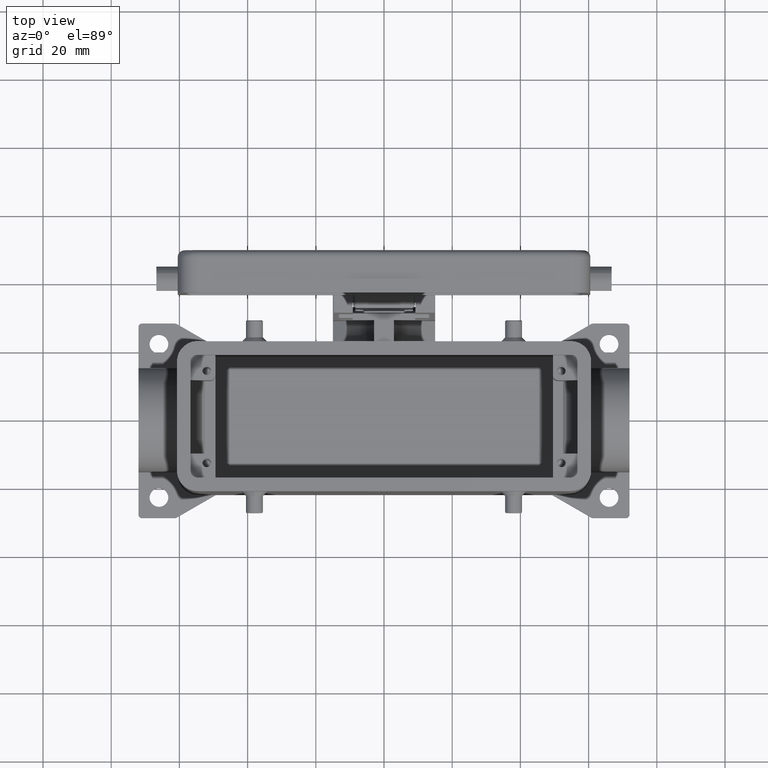
[diagram: clean part render]
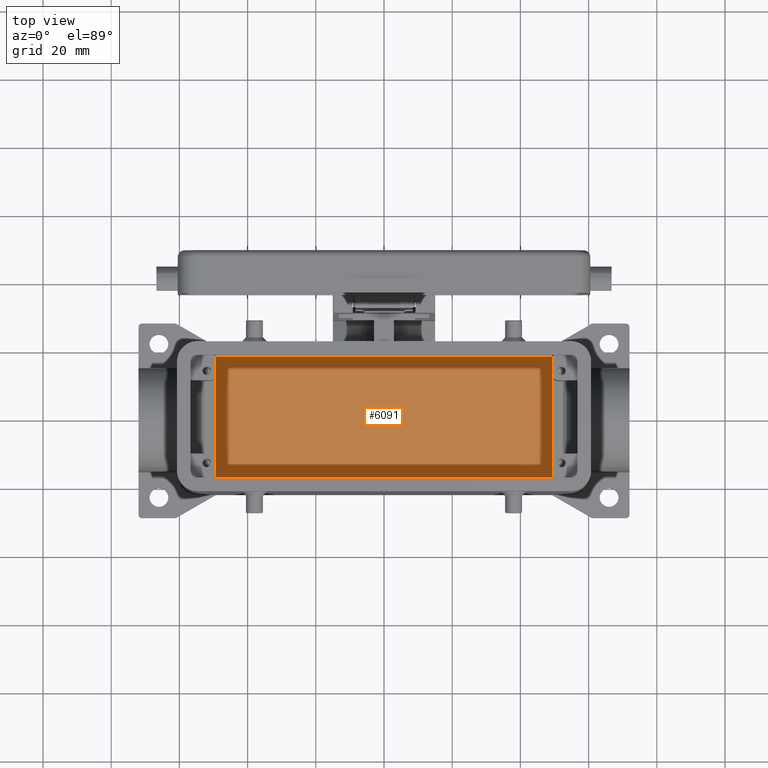
[diagram: same view with one face highlighted and labeled with its STEP entity id]
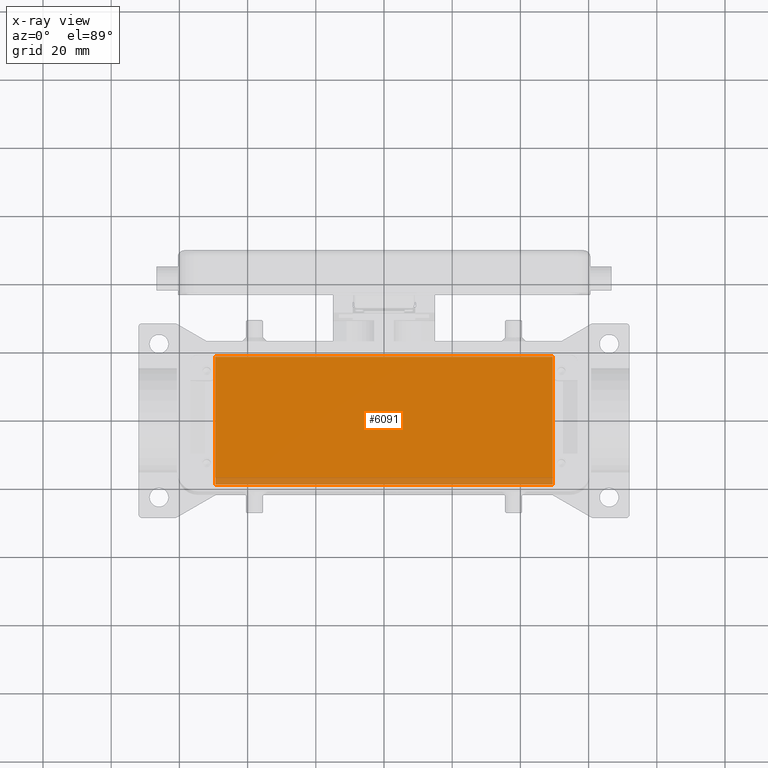
[diagram: x-ray of the same camera — body ghosted, the highlighted face saturated]
A machine part, top view. The second image highlights one B-rep face of the part: STEP entity #6091.
The next image is the same camera in x-ray: the body ghosted, the highlighted face saturated — about 5% of this face is hidden behind the body in this view.
In plain terms, the highlighted planar face has unit normal (0, 0, 1).
Its self-contained STEP definition (entity closure, byte-faithful):
#6052=CARTESIAN_POINT('',(-3.058716E-015,4.440892E-015,-46.999999999999993));
#6053=DIRECTION('',(0.0,0.0,1.0));
#6054=DIRECTION('',(1.0,0.0,0.0));
#6055=AXIS2_PLACEMENT_3D('',#6052,#6053,#6054);
#6056=PLANE('',#6055);
#6057=CARTESIAN_POINT('',(-49.500000000000014,-18.749999999999996,-47.000000000000014));
#6058=VERTEX_POINT('',#6057);
#6059=CARTESIAN_POINT('',(49.500000000000014,-18.749999999999996,-47.000000000000014));
#6060=VERTEX_POINT('',#6059);
#6061=CARTESIAN_POINT('',(-49.500000000000014,-18.749999999999996,-47.000000000000014));
#6062=DIRECTION('',(1.0,0.0,0.0));
#6063=VECTOR('',#6062,99.000000000000028);
#6064=LINE('',#6061,#6063);
#6065=EDGE_CURVE('',#6058,#6060,#6064,.T.);
#6066=ORIENTED_EDGE('',*,*,#6065,.T.);
#6067=CARTESIAN_POINT('',(49.500000000000014,18.749999999999996,-47.000000000000014));
#6068=VERTEX_POINT('',#6067);
#6069=CARTESIAN_POINT('',(49.500000000000014,18.749999999999996,-47.000000000000014));
#6070=DIRECTION('',(0.0,-1.0,0.0));
#6071=VECTOR('',#6070,37.499999999999993);
#6072=LINE('',#6069,#6071);
#6073=EDGE_CURVE('',#6068,#6060,#6072,.T.);
#6074=ORIENTED_EDGE('',*,*,#6073,.F.);
#6075=CARTESIAN_POINT('',(-49.500000000000014,18.749999999999996,-47.000000000000014));
#6076=VERTEX_POINT('',#6075);
#6077=CARTESIAN_POINT('',(49.500000000000014,18.749999999999996,-47.000000000000014));
#6078=DIRECTION('',(-1.0,0.0,0.0));
#6079=VECTOR('',#6078,99.000000000000028);
#6080=LINE('',#6077,#6079);
#6081=EDGE_CURVE('',#6068,#6076,#6080,.T.);
#6082=ORIENTED_EDGE('',*,*,#6081,.T.);
#6083=CARTESIAN_POINT('',(-49.500000000000014,-18.749999999999996,-47.000000000000014));
#6084=DIRECTION('',(0.0,1.0,0.0));
#6085=VECTOR('',#6084,37.499999999999993);
#6086=LINE('',#6083,#6085);
#6087=EDGE_CURVE('',#6058,#6076,#6086,.T.);
#6088=ORIENTED_EDGE('',*,*,#6087,.F.);
#6089=EDGE_LOOP('',(#6066,#6074,#6082,#6088));
#6090=FACE_OUTER_BOUND('',#6089,.T.);
#6091=ADVANCED_FACE('',(#6090),#6056,.T.);